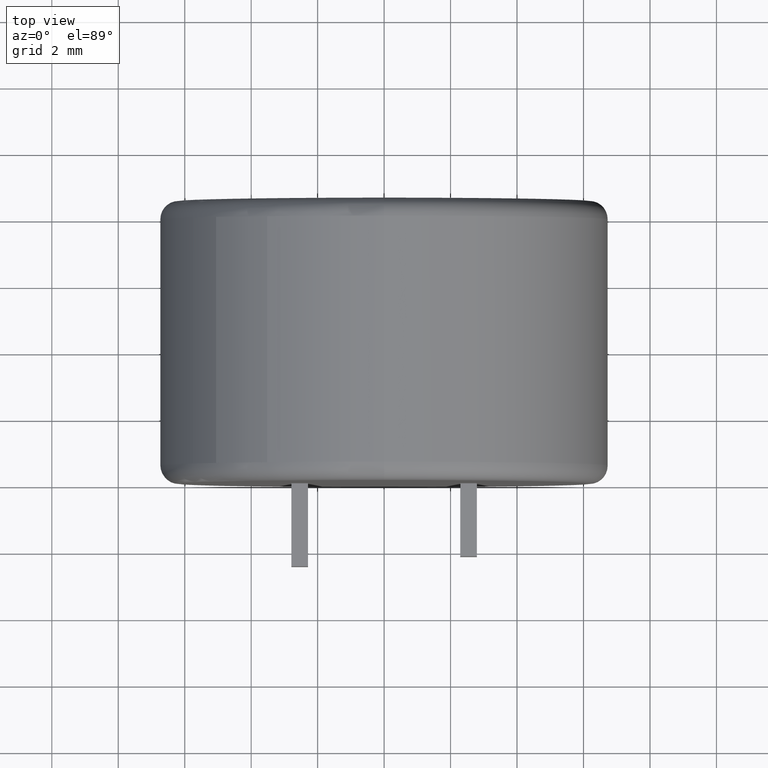
[diagram: clean part render]
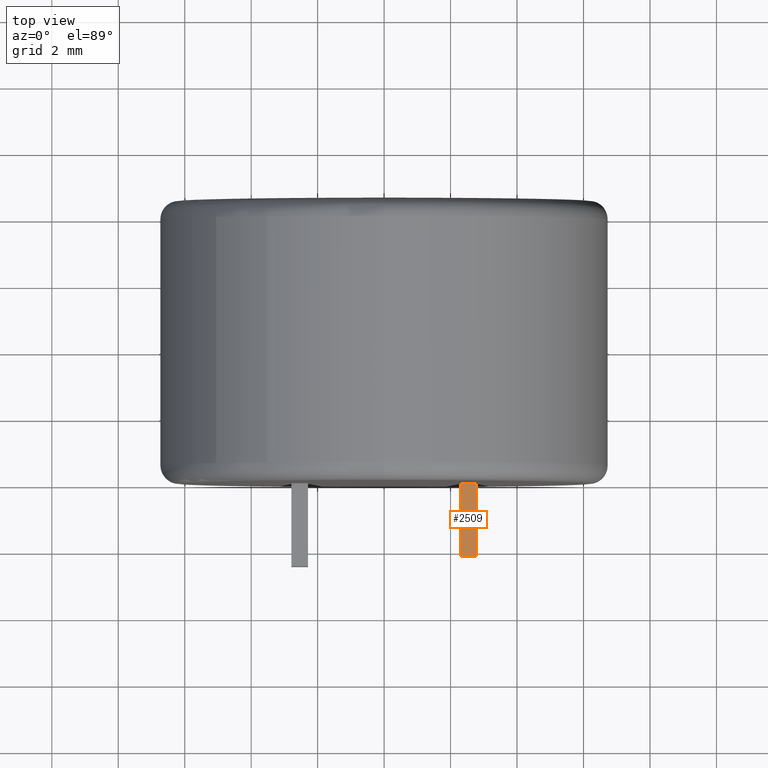
[diagram: same view with one face highlighted and labeled with its STEP entity id]
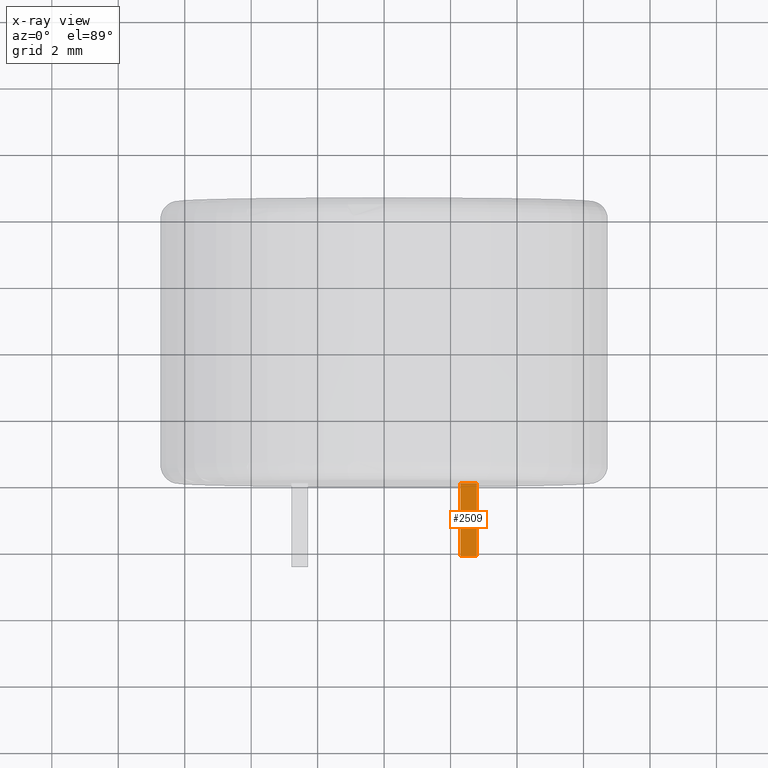
[diagram: x-ray of the same camera — body ghosted, the highlighted face saturated]
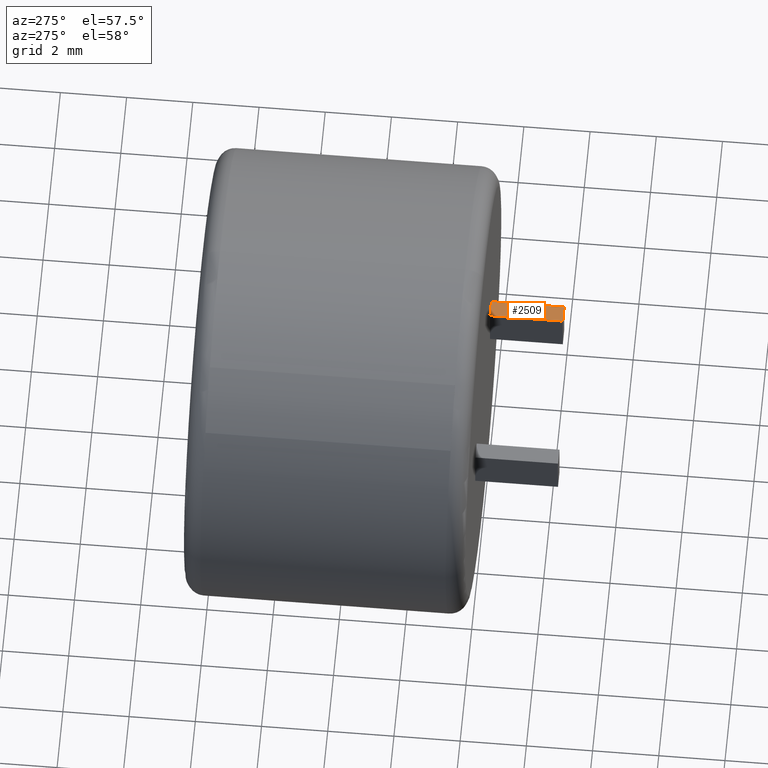
[diagram: same view with one face highlighted and labeled with its STEP entity id]
A machine part, top view. The second image highlights one B-rep face of the part: STEP entity #2509.
The next image is the same camera in x-ray: the body ghosted, the highlighted face saturated — about 0% of this face is hidden behind the body in this view.
A second angle (auxiliary view) of the same face is appended — the face is thin or edge-on in the first view.
In plain terms, the highlighted planar face has unit normal (0, 0, -1).
Its self-contained STEP definition (entity closure, byte-faithful):
#40 = CARTESIAN_POINT ( 'NONE',  ( 2.290000000000000000, 0.0000000000000000000, 0.6499999999999955800 ) ) ;
#219 = ORIENTED_EDGE ( 'NONE', *, *, #682, .T. ) ;
#290 = CARTESIAN_POINT ( 'NONE',  ( 2.790000000000000000, 0.0000000000000000000, 0.6499999999999956900 ) ) ;
#523 = VERTEX_POINT ( 'NONE', #40 ) ;
#532 = CARTESIAN_POINT ( 'NONE',  ( 2.790000000000000000, -2.200000000000000200, 0.6499999999999956900 ) ) ;
#657 = VERTEX_POINT ( 'NONE', #290 ) ;
#682 = EDGE_CURVE ( 'NONE', #657, #523, #2218, .T. ) ;
#751 = CARTESIAN_POINT ( 'NONE',  ( 2.790000000000000000, -2.200000000000000200, 0.6499999999999956900 ) ) ;
#916 = DIRECTION ( 'NONE',  ( 2.168404344971008900E-016, 0.0000000000000000000, -1.000000000000000000 ) ) ;
#952 = CARTESIAN_POINT ( 'NONE',  ( 2.290000000000000000, -2.200000000000000200, 0.6499999999999955800 ) ) ;
#1155 = DIRECTION ( 'NONE',  ( -1.000000000000000000, -0.0000000000000000000, -2.168404344971008900E-016 ) ) ;
#1157 = VECTOR ( 'NONE', #2032, 1000.000000000000000 ) ;
#1399 = EDGE_CURVE ( 'NONE', #1509, #1825, #1487, .T. ) ;
#1459 = DIRECTION ( 'NONE',  ( -0.0000000000000000000, 1.000000000000000000, -0.0000000000000000000 ) ) ;
#1487 = LINE ( 'NONE', #952, #1835 ) ;
#1499 = EDGE_CURVE ( 'NONE', #1509, #657, #2002, .T. ) ;
#1509 = VERTEX_POINT ( 'NONE', #532 ) ;
#1591 = CARTESIAN_POINT ( 'NONE',  ( 2.290000000000000000, 0.0000000000000000000, 0.6499999999999955800 ) ) ;
#1740 = AXIS2_PLACEMENT_3D ( 'NONE', #2210, #916, #2001 ) ;
#1806 = VECTOR ( 'NONE', #1155, 1000.000000000000000 ) ;
#1825 = VERTEX_POINT ( 'NONE', #2522 ) ;
#1835 = VECTOR ( 'NONE', #2280, 1000.000000000000000 ) ;
#2001 = DIRECTION ( 'NONE',  ( -1.000000000000000000, 0.0000000000000000000, -2.168404344971008900E-016 ) ) ;
#2002 = LINE ( 'NONE', #751, #1157 ) ;
#2032 = DIRECTION ( 'NONE',  ( -0.0000000000000000000, 1.000000000000000000, -0.0000000000000000000 ) ) ;
#2039 = ORIENTED_EDGE ( 'NONE', *, *, #1399, .F. ) ;
#2210 = CARTESIAN_POINT ( 'NONE',  ( 2.290000000000000000, -2.200000000000000200, 0.6499999999999955800 ) ) ;
#2218 = LINE ( 'NONE', #1591, #1806 ) ;
#2265 = ORIENTED_EDGE ( 'NONE', *, *, #2387, .F. ) ;
#2280 = DIRECTION ( 'NONE',  ( -1.000000000000000000, -0.0000000000000000000, -2.168404344971008900E-016 ) ) ;
#2369 = PLANE ( 'NONE',  #1740 ) ;
#2377 = VECTOR ( 'NONE', #1459, 1000.000000000000000 ) ;
#2387 = EDGE_CURVE ( 'NONE', #1825, #523, #2651, .T. ) ;
#2390 = ORIENTED_EDGE ( 'NONE', *, *, #1499, .T. ) ;
#2426 = EDGE_LOOP ( 'NONE', ( #219, #2265, #2039, #2390 ) ) ;
#2509 = ADVANCED_FACE ( 'NONE', ( #2613 ), #2369, .F. ) ;
#2522 = CARTESIAN_POINT ( 'NONE',  ( 2.290000000000000000, -2.200000000000000200, 0.6499999999999955800 ) ) ;
#2554 = CARTESIAN_POINT ( 'NONE',  ( 2.290000000000000000, -2.200000000000000200, 0.6499999999999955800 ) ) ;
#2613 = FACE_OUTER_BOUND ( 'NONE', #2426, .T. ) ;
#2651 = LINE ( 'NONE', #2554, #2377 ) ;